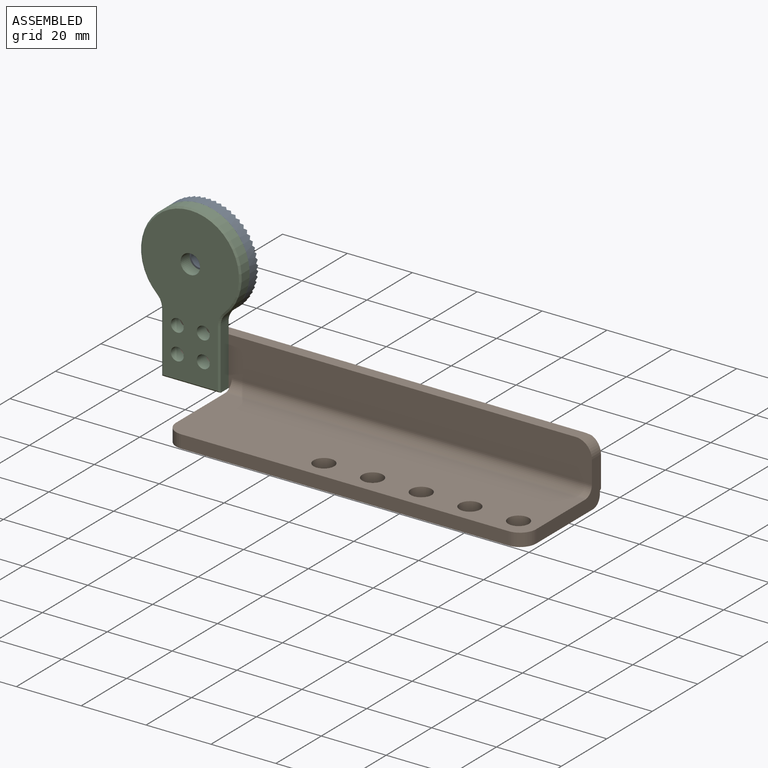
[diagram: assembled view]
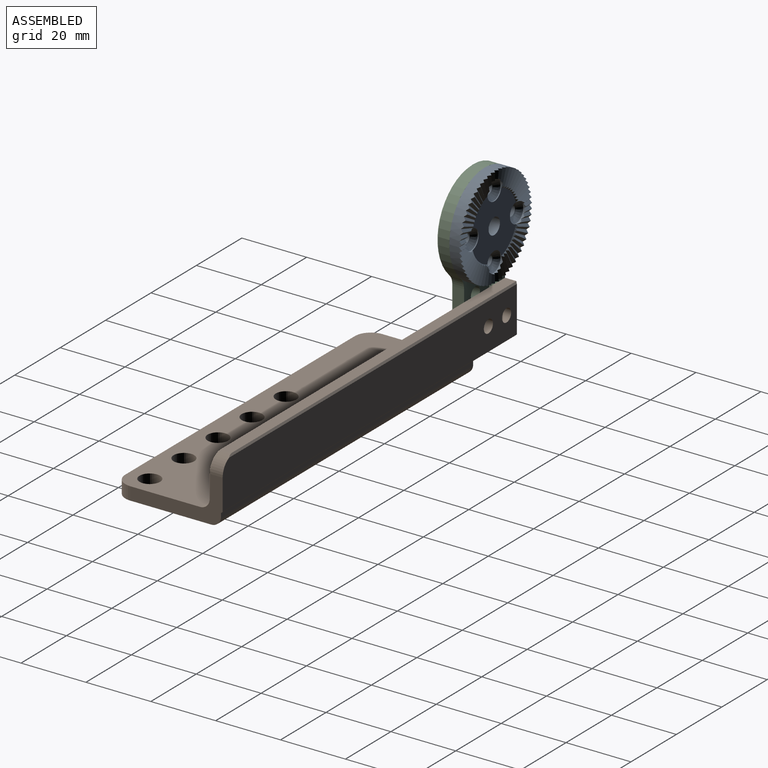
[diagram: assembled view, second angle]
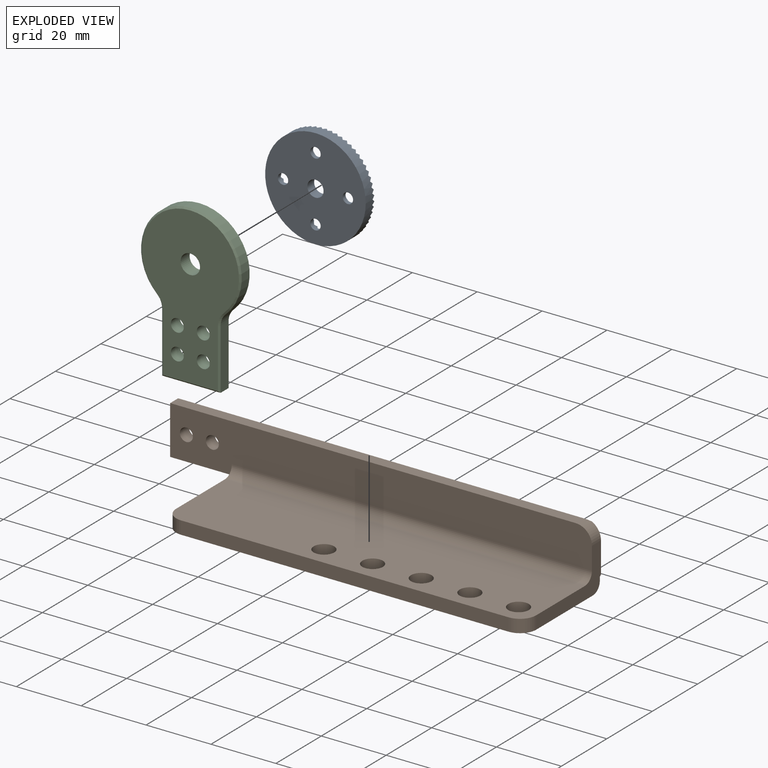
[diagram: exploded view]
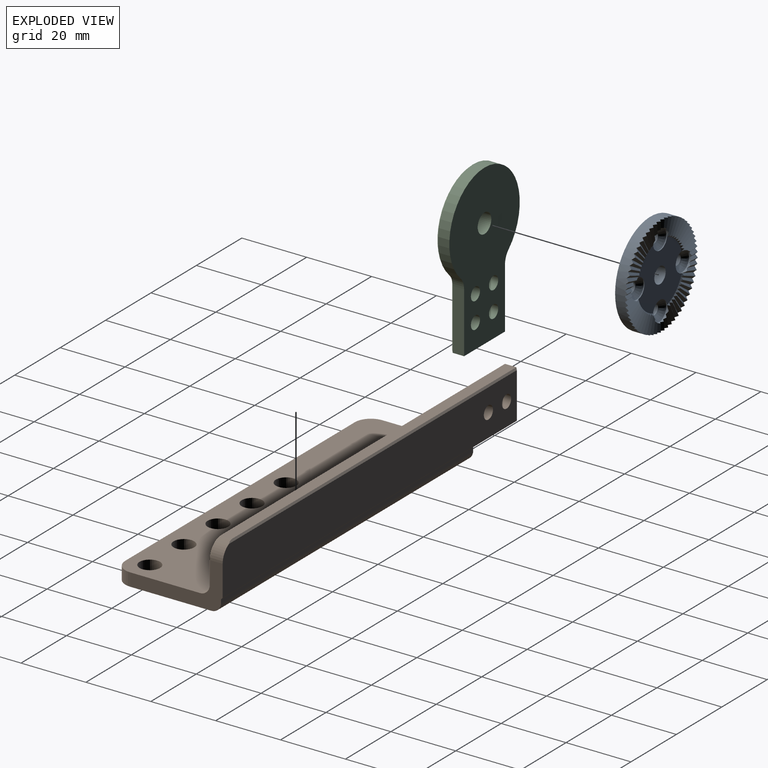
[diagram: exploded view, second angle]
ASSEMBLY  parts=3 mates=2
PART A: 180 faces, bbox 31x31x3.8 mm
  f0: cylinder r=1.6mm len=3.2mm, axis (0,0,1), area 12.6mm2, adj f109,f177
  f1: cylinder r=1.6mm len=3.2mm, axis (0,0,1), area 12.6mm2, adj f109,f179
  f2: cylinder r=1.6mm len=3.2mm, axis (0,0,1), area 12.6mm2, adj f109,f178
  f3: cylinder r=1.6mm len=3.2mm, axis (0,0,1), area 12.6mm2, adj f109,f176
  f4: cylinder r=15.5mm len=31mm, axis (0,0,-1), area 331.7mm2, adj f5,f6,f8,f10,f12,f14,f16,f18
  f5: plane 2.48x0.82mm, normal (0,0.71,0.71), area 2.6mm2, adj f4,f108,f170,f172
  f6: plane 3.49x1.26mm, normal (0.15,-0.69,0.71), area 3.3mm2, adj f4,f169,f171,f172
  f7: cone r=10mm half-angle=45deg, axis (0,0,1), area 0mm2, adj f8,f111,f172
  f8: plane 5.46x1.85mm, normal (0.22,-0.67,0.71), area 4.6mm2, adj f4,f7,f168,f169,f172
  f9: cone r=10mm half-angle=45deg, axis (0,0,1), area 0.4mm2, adj f10,f111,f168
  f10: plane 5.35x2.54mm, normal (0.29,-0.65,0.71), area 5mm2, adj f4,f9,f167,f168
  f11: cone r=10mm half-angle=45deg, axis (0,0,1), area 0.4mm2, adj f12,f111,f167
  f12: plane 5.16x2.97mm, normal (0.35,-0.61,0.71), area 5mm2, adj f4,f11,f166,f167
  f13: cone r=10mm half-angle=45deg, axis (0,0,1), area 0.4mm2, adj f14,f111,f166
  f14: plane 4.92x3.38mm, normal (0.42,-0.57,0.71), area 5mm2, adj f4,f13,f165,f166
  f15: cone r=10mm half-angle=45deg, axis (0,0,1), area 0.4mm2, adj f16,f111,f165
  f16: plane 4.63x3.74mm, normal (0.47,-0.53,0.71), area 5mm2, adj f4,f15,f164,f165
  f17: cone r=10mm half-angle=45deg, axis (0,0,1), area 0.4mm2, adj f18,f111,f164
  f18: plane 4.28x4.1mm, normal (0.53,-0.47,0.71), area 5mm2, adj f4,f17,f163,f164
  f19: cone r=10mm half-angle=45deg, axis (0,0,1), area 0.4mm2, adj f20,f111,f163
  f20: plane 4.46x3.89mm, normal (0.57,-0.42,0.71), area 5mm2, adj f4,f19,f162,f163
  f21: cone r=10mm half-angle=45deg, axis (0,0,1), area 0.4mm2, adj f22,f111,f162
  f22: plane 4.78x3.45mm, normal (0.61,-0.35,0.71), area 5mm2, adj f4,f21,f161,f162
  f23: cone r=10mm half-angle=45deg, axis (0,0,1), area 0.4mm2, adj f24,f111,f161
  f24: plane 5.04x2.98mm, normal (0.65,-0.29,0.71), area 5mm2, adj f4,f23,f160,f161
  f25: cone r=10mm half-angle=45deg, axis (0,0,1), area 0.4mm2, adj f26,f111,f160
  f26: plane 5.24x2.48mm, normal (0.67,-0.22,0.71), area 5mm2, adj f4,f25,f159,f160
  f27: cone r=10mm half-angle=45deg, axis (0,0,1), area 0mm2, adj f111,f159,f173
  f28: plane 4.18x1.5mm, normal (0.69,-0.15,0.71), area 3.8mm2, adj f4,f158,f159,f173
  f29: plane 3.04x1.1mm, normal (0.7,-0.07,0.71), area 2.9mm2, adj f4,f157,f158,f173
  f30: plane 2.48x0.82mm, normal (0.71,0,0.71), area 2.6mm2, adj f4,f156,f157,f173
  f31: plane 2.69x0.95mm, normal (0.7,0.07,0.71), area 2.7mm2, adj f4,f155,f156,f173
  f32: plane 3.49x1.26mm, normal (0.69,0.15,0.71), area 3.3mm2, adj f4,f154,f155,f173
  f33: cone r=10mm half-angle=45deg, axis (0,0,1), area 0mm2, adj f34,f111,f173
  f34: plane 5.48x1.86mm, normal (0.67,0.22,0.71), area 4.6mm2, adj f4,f33,f153,f154,f173
  f35: cone r=10mm half-angle=45deg, axis (0,0,1), area 0.4mm2, adj f36,f111,f153
  f36: plane 5.35x2.54mm, normal (0.65,0.29,0.71), area 5mm2, adj f4,f35,f152,f153
  f37: cone r=10mm half-angle=45deg, axis (0,0,1), area 0.4mm2, adj f38,f111,f152
  f38: plane 5.16x2.97mm, normal (0.61,0.35,0.71), area 5mm2, adj f4,f37,f151,f152
  f39: cone r=10mm half-angle=45deg, axis (0,0,1), area 0.4mm2, adj f40,f111,f151
  f40: plane 4.92x3.38mm, normal (0.57,0.42,0.71), area 5mm2, adj f4,f39,f150,f151
  f41: cone r=10mm half-angle=45deg, axis (0,0,1), area 0.4mm2, adj f42,f111,f150
  f42: plane 4.63x3.74mm, normal (0.53,0.47,0.71), area 5mm2, adj f4,f41,f149,f150
  f43: cone r=10mm half-angle=45deg, axis (0,0,1), area 0.4mm2, adj f44,f111,f149
  f44: plane 4.28x4.1mm, normal (0.47,0.53,0.71), area 5mm2, adj f4,f43,f148,f149
  f45: cone r=10mm half-angle=45deg, axis (0,0,1), area 0.4mm2, adj f46,f111,f148
  f46: plane 4.46x3.89mm, normal (0.42,0.57,0.71), area 5mm2, adj f4,f45,f147,f148
  f47: cone r=10mm half-angle=45deg, axis (0,0,1), area 0.4mm2, adj f48,f111,f147
  f48: plane 4.78x3.45mm, normal (0.35,0.61,0.71), area 5mm2, adj f4,f47,f146,f147
  f49: cone r=10mm half-angle=45deg, axis (0,0,1), area 0.4mm2, adj f50,f111,f146
  f50: plane 5.04x2.98mm, normal (0.29,0.65,0.71), area 5mm2, adj f4,f49,f145,f146
  f51: cone r=10mm half-angle=45deg, axis (0,0,1), area 0.4mm2, adj f52,f111,f145
  f52: plane 5.24x2.48mm, normal (0.22,0.67,0.71), area 5mm2, adj f4,f51,f144,f145
  f53: cone r=10mm half-angle=45deg, axis (0,0,1), area 0mm2, adj f111,f144,f174
  f54: plane 4.18x1.5mm, normal (0.15,0.69,0.71), area 3.8mm2, adj f4,f143,f144,f174
  f55: plane 3.04x1.1mm, normal (0.07,0.7,0.71), area 2.9mm2, adj f4,f142,f143,f174
  f56: plane 2.48x0.82mm, normal (0,0.71,0.71), area 2.6mm2, adj f4,f141,f142,f174
  f57: plane 2.69x0.95mm, normal (-0.07,0.7,0.71), area 2.7mm2, adj f4,f140,f141,f174
  f58: plane 3.49x1.26mm, normal (-0.15,0.69,0.71), area 3.3mm2, adj f4,f139,f140,f174
  f59: cone r=10mm half-angle=45deg, axis (0,0,1), area 0mm2, adj f60,f111,f174
  f60: plane 5.46x1.85mm, normal (-0.22,0.67,0.71), area 4.6mm2, adj f4,f59,f138,f139,f174
  f61: cone r=10mm half-angle=45deg, axis (0,0,1), area 0.4mm2, adj f62,f111,f138
  f62: plane 5.35x2.54mm, normal (-0.29,0.65,0.71), area 5mm2, adj f4,f61,f137,f138
  f63: cone r=10mm half-angle=45deg, axis (0,0,1), area 0.4mm2, adj f64,f111,f137
  f64: plane 5.16x2.97mm, normal (-0.35,0.61,0.71), area 5mm2, adj f4,f63,f136,f137
  f65: cone r=10mm half-angle=45deg, axis (0,0,1), area 0.4mm2, adj f66,f111,f136
  f66: plane 4.92x3.38mm, normal (-0.42,0.57,0.71), area 5mm2, adj f4,f65,f135,f136
  f67: cone r=10mm half-angle=45deg, axis (0,0,1), area 0.4mm2, adj f68,f111,f135
  f68: plane 4.63x3.74mm, normal (-0.47,0.53,0.71), area 5mm2, adj f4,f67,f134,f135
  f69: cone r=10mm half-angle=45deg, axis (0,0,1), area 0.4mm2, adj f70,f111,f134
  f70: plane 4.28x4.1mm, normal (-0.53,0.47,0.71), area 5mm2, adj f4,f69,f133,f134
  f71: cone r=10mm half-angle=45deg, axis (0,0,1), area 0.4mm2, adj f72,f111,f133
  f72: plane 4.46x3.89mm, normal (-0.57,0.42,0.71), area 5mm2, adj f4,f71,f132,f133
  f73: cone r=10mm half-angle=45deg, axis (0,0,1), area 0.4mm2, adj f74,f111,f132
  f74: plane 4.78x3.45mm, normal (-0.61,0.35,0.71), area 5mm2, adj f4,f73,f131,f132
  f75: cone r=10mm half-angle=45deg, axis (0,0,1), area 0.4mm2, adj f76,f111,f131
  f76: plane 5.04x2.98mm, normal (-0.65,0.29,0.71), area 5mm2, adj f4,f75,f130,f131
  f77: cone r=10mm half-angle=45deg, axis (0,0,1), area 0.4mm2, adj f78,f111,f130
  f78: plane 5.24x2.48mm, normal (-0.67,0.22,0.71), area 5mm2, adj f4,f77,f129,f130
  f79: cone r=10mm half-angle=45deg, axis (0,0,1), area 0mm2, adj f111,f129,f175
  f80: plane 4.18x1.5mm, normal (-0.69,0.15,0.71), area 3.8mm2, adj f4,f128,f129,f175
  f81: plane 3.04x1.1mm, normal (-0.7,0.07,0.71), area 2.9mm2, adj f4,f127,f128,f175
  f82: plane 2.48x0.82mm, normal (-0.71,0,0.71), area 2.6mm2, adj f4,f126,f127,f175
  f83: plane 2.69x0.95mm, normal (-0.7,-0.07,0.71), area 2.7mm2, adj f4,f125,f126,f175
  f84: plane 3.49x1.26mm, normal (-0.69,-0.15,0.71), area 3.3mm2, adj f4,f124,f125,f175
  f85: cone r=10mm half-angle=45deg, axis (0,0,1), area 0mm2, adj f86,f111,f175
  f86: plane 5.46x1.85mm, normal (-0.67,-0.22,0.71), area 4.6mm2, adj f4,f85,f123,f124,f175
  f87: cone r=10mm half-angle=45deg, axis (0,0,1), area 0.4mm2, adj f88,f111,f123
  f88: plane 5.35x2.54mm, normal (-0.65,-0.29,0.71), area 5mm2, adj f4,f87,f122,f123
  f89: cone r=10mm half-angle=45deg, axis (0,0,1), area 0.4mm2, adj f90,f111,f122
  f90: plane 5.16x2.97mm, normal (-0.61,-0.35,0.71), area 5mm2, adj f4,f89,f121,f122
  f91: cone r=10mm half-angle=45deg, axis (0,0,1), area 0.4mm2, adj f92,f111,f121
  f92: plane 4.92x3.38mm, normal (-0.57,-0.42,0.71), area 5mm2, adj f4,f91,f120,f121
  f93: cone r=10mm half-angle=45deg, axis (0,0,1), area 0.4mm2, adj f94,f111,f120
  f94: plane 4.63x3.74mm, normal (-0.53,-0.47,0.71), area 5mm2, adj f4,f93,f119,f120
  f95: cone r=10mm half-angle=45deg, axis (0,0,1), area 0.4mm2, adj f96,f111,f119
  f96: plane 4.28x4.1mm, normal (-0.47,-0.53,0.71), area 5mm2, adj f4,f95,f118,f119
  f97: cone r=10mm half-angle=45deg, axis (0,0,1), area 0.4mm2, adj f98,f111,f118
  f98: plane 4.46x3.89mm, normal (-0.42,-0.57,0.71), area 5mm2, adj f4,f97,f117,f118
  f99: cone r=10mm half-angle=45deg, axis (0,0,1), area 0.4mm2, adj f100,f111,f117
  f100: plane 4.78x3.45mm, normal (-0.35,-0.61,0.71), area 5mm2, adj f4,f99,f116,f117
  f101: cone r=10mm half-angle=45deg, axis (0,0,1), area 0.4mm2, adj f102,f111,f116
  f102: plane 5.04x2.98mm, normal (-0.29,-0.65,0.71), area 5mm2, adj f4,f101,f115,f116
  f103: cone r=10mm half-angle=45deg, axis (0,0,1), area 0.4mm2, adj f104,f111,f115
  f104: plane 5.24x2.48mm, normal (-0.22,-0.67,0.71), area 5mm2, adj f4,f103,f114,f115
  f105: cone r=10mm half-angle=45deg, axis (0,0,1), area 0mm2, adj f111,f114,f172
  f106: plane 4.18x1.5mm, normal (-0.15,-0.69,0.71), area 3.8mm2, adj f4,f113,f114,f172
  f107: plane 3.04x1.1mm, normal (-0.07,-0.7,0.71), area 2.9mm2, adj f4,f112,f113,f172
  f108: plane 2.48x0.82mm, normal (0,-0.71,0.71), area 2.6mm2, adj f4,f5,f112,f172
  f109: plane 31x31mm, normal (0,0,-1), area 703mm2, adj f0,f1,f2,f3,f4,f110
  f110: cylinder r=2.5mm len=5mm, axis (0,0,1), area 47.1mm2, adj f109,f111
  f111: plane 19.04x19.04mm, normal (0,0,1), area 238.1mm2, adj f7,f9,f11,f13,f15,f17,f19,f21
  f112: plane 2.69x0.95mm, normal (0.07,0.7,0.71), area 2.7mm2, adj f4,f107,f108,f172
  f113: plane 3.49x1.26mm, normal (0.15,0.69,0.71), area 3.3mm2, adj f4,f106,f107,f172
  f114: plane 5.46x1.85mm, normal (0.22,0.67,0.71), area 4.6mm2, adj f4,f104,f105,f106,f172
  f115: plane 5.35x2.54mm, normal (0.29,0.65,0.71), area 5mm2, adj f4,f102,f103,f104
  f116: plane 5.16x2.97mm, normal (0.35,0.61,0.71), area 5mm2, adj f4,f100,f101,f102
  f117: plane 4.92x3.38mm, normal (0.42,0.57,0.71), area 5mm2, adj f4,f98,f99,f100
  f118: plane 4.63x3.74mm, normal (0.47,0.53,0.71), area 5mm2, adj f4,f96,f97,f98
  f119: plane 4.28x4.1mm, normal (0.53,0.47,0.71), area 5mm2, adj f4,f94,f95,f96
  f120: plane 4.46x3.89mm, normal (0.57,0.42,0.71), area 5mm2, adj f4,f92,f93,f94
  f121: plane 4.78x3.45mm, normal (0.61,0.35,0.71), area 5mm2, adj f4,f90,f91,f92
  f122: plane 5.04x2.98mm, normal (0.65,0.29,0.71), area 5mm2, adj f4,f88,f89,f90
  f123: plane 5.24x2.48mm, normal (0.67,0.22,0.71), area 5mm2, adj f4,f86,f87,f88
  f124: plane 4.18x1.5mm, normal (0.69,0.15,0.71), area 3.8mm2, adj f4,f84,f86,f175
  f125: plane 3.04x1.1mm, normal (0.7,0.07,0.71), area 2.9mm2, adj f4,f83,f84,f175
  f126: plane 2.48x0.82mm, normal (0.71,0,0.71), area 2.6mm2, adj f4,f82,f83,f175
  f127: plane 2.69x0.95mm, normal (0.7,-0.07,0.71), area 2.7mm2, adj f4,f81,f82,f175
  f128: plane 3.49x1.26mm, normal (0.69,-0.15,0.71), area 3.3mm2, adj f4,f80,f81,f175
  f129: plane 5.48x1.86mm, normal (0.67,-0.22,0.71), area 4.6mm2, adj f4,f78,f79,f80,f175
  f130: plane 5.35x2.54mm, normal (0.65,-0.29,0.71), area 5mm2, adj f4,f76,f77,f78
  f131: plane 5.16x2.97mm, normal (0.61,-0.35,0.71), area 5mm2, adj f4,f74,f75,f76
  f132: plane 4.92x3.38mm, normal (0.57,-0.42,0.71), area 5mm2, adj f4,f72,f73,f74
  f133: plane 4.63x3.74mm, normal (0.53,-0.47,0.71), area 5mm2, adj f4,f70,f71,f72
  f134: plane 4.28x4.1mm, normal (0.47,-0.53,0.71), area 5mm2, adj f4,f68,f69,f70
  f135: plane 4.46x3.89mm, normal (0.42,-0.57,0.71), area 5mm2, adj f4,f66,f67,f68
  f136: plane 4.78x3.45mm, normal (0.35,-0.61,0.71), area 5mm2, adj f4,f64,f65,f66
  f137: plane 5.04x2.98mm, normal (0.29,-0.65,0.71), area 5mm2, adj f4,f62,f63,f64
  f138: plane 5.24x2.48mm, normal (0.22,-0.67,0.71), area 5mm2, adj f4,f60,f61,f62
  f139: plane 4.18x1.5mm, normal (0.15,-0.69,0.71), area 3.8mm2, adj f4,f58,f60,f174
  f140: plane 3.04x1.1mm, normal (0.07,-0.7,0.71), area 2.9mm2, adj f4,f57,f58,f174
  f141: plane 2.48x0.82mm, normal (0,-0.71,0.71), area 2.6mm2, adj f4,f56,f57,f174
  f142: plane 2.69x0.95mm, normal (-0.07,-0.7,0.71), area 2.7mm2, adj f4,f55,f56,f174
  f143: plane 3.49x1.26mm, normal (-0.15,-0.69,0.71), area 3.3mm2, adj f4,f54,f55,f174
  f144: plane 5.46x1.85mm, normal (-0.22,-0.67,0.71), area 4.6mm2, adj f4,f52,f53,f54,f174
  f145: plane 5.35x2.54mm, normal (-0.29,-0.65,0.71), area 5mm2, adj f4,f50,f51,f52
  f146: plane 5.16x2.97mm, normal (-0.35,-0.61,0.71), area 5mm2, adj f4,f48,f49,f50
  f147: plane 4.92x3.38mm, normal (-0.42,-0.57,0.71), area 5mm2, adj f4,f46,f47,f48
  f148: plane 4.63x3.74mm, normal (-0.47,-0.53,0.71), area 5mm2, adj f4,f44,f45,f46
  f149: plane 4.28x4.1mm, normal (-0.53,-0.47,0.71), area 5mm2, adj f4,f42,f43,f44
  f150: plane 4.46x3.89mm, normal (-0.57,-0.42,0.71), area 5mm2, adj f4,f40,f41,f42
  f151: plane 4.78x3.45mm, normal (-0.61,-0.35,0.71), area 5mm2, adj f4,f38,f39,f40
  f152: plane 5.04x2.98mm, normal (-0.65,-0.29,0.71), area 5mm2, adj f4,f36,f37,f38
  f153: plane 5.24x2.48mm, normal (-0.67,-0.22,0.71), area 5mm2, adj f4,f34,f35,f36
  f154: plane 4.18x1.5mm, normal (-0.69,-0.15,0.71), area 3.8mm2, adj f4,f32,f34,f173
  f155: plane 3.04x1.1mm, normal (-0.7,-0.07,0.71), area 2.9mm2, adj f4,f31,f32,f173
  f156: plane 2.48x0.82mm, normal (-0.71,0,0.71), area 2.6mm2, adj f4,f30,f31,f173
  f157: plane 2.69x0.95mm, normal (-0.7,0.07,0.71), area 2.7mm2, adj f4,f29,f30,f173
  f158: plane 3.49x1.26mm, normal (-0.69,0.15,0.71), area 3.3mm2, adj f4,f28,f29,f173
  f159: plane 5.46x1.85mm, normal (-0.67,0.22,0.71), area 4.6mm2, adj f4,f26,f27,f28,f173
  f160: plane 5.35x2.54mm, normal (-0.65,0.29,0.71), area 5mm2, adj f4,f24,f25,f26
  f161: plane 5.16x2.97mm, normal (-0.61,0.35,0.71), area 5mm2, adj f4,f22,f23,f24
  f162: plane 4.92x3.38mm, normal (-0.57,0.42,0.71), area 5mm2, adj f4,f20,f21,f22
  f163: plane 4.63x3.74mm, normal (-0.53,0.47,0.71), area 5mm2, adj f4,f18,f19,f20
  f164: plane 4.28x4.1mm, normal (-0.47,0.53,0.71), area 5mm2, adj f4,f16,f17,f18
  f165: plane 4.46x3.89mm, normal (-0.42,0.57,0.71), area 5mm2, adj f4,f14,f15,f16
  f166: plane 4.78x3.45mm, normal (-0.35,0.61,0.71), area 5mm2, adj f4,f12,f13,f14
  f167: plane 5.04x2.98mm, normal (-0.29,0.65,0.71), area 5mm2, adj f4,f10,f11,f12
  f168: plane 5.24x2.48mm, normal (-0.22,0.67,0.71), area 5mm2, adj f4,f8,f9,f10
  f169: plane 4.18x1.5mm, normal (-0.15,0.69,0.71), area 3.8mm2, adj f4,f6,f8,f172
  f170: plane 2.69x0.95mm, normal (0.07,-0.7,0.71), area 2.7mm2, adj f4,f5,f171,f172
  f171: plane 3.04x1.1mm, normal (-0.07,0.7,0.71), area 2.9mm2, adj f4,f6,f170,f172
  f172: cylinder r=3.1mm len=6.2mm, axis (0,0,1), area 8.2mm2, adj f5,f6,f7,f8,f105,f106,f107,f108
  f173: cylinder r=3.1mm len=6.2mm, axis (0,0,1), area 8.2mm2, adj f27,f28,f29,f30,f31,f32,f33,f34
  f174: cylinder r=3.1mm len=6.2mm, axis (0,0,1), area 8.2mm2, adj f53,f54,f55,f56,f57,f58,f59,f60
  f175: cylinder r=3.1mm len=6.2mm, axis (0,0,1), area 8.2mm2, adj f79,f80,f81,f82,f83,f84,f85,f86
  f176: cone r=3.1mm half-angle=45deg, axis (0,0,1), area 31.3mm2, adj f3,f175
  f177: cone r=3.1mm half-angle=45deg, axis (0,0,1), area 31.3mm2, adj f0,f172
  f178: cone r=3.1mm half-angle=45deg, axis (0,0,1), area 31.3mm2, adj f2,f174
  f179: cone r=3.1mm half-angle=45deg, axis (0,0,1), area 31.3mm2, adj f1,f173
PART B: 26 faces, bbox 130x33.5x19 mm
  f0: plane 19x3.5mm, normal (0,0,-1), area 66.5mm2, adj f1,f7,f9,f11
  f1: plane 15x3.5mm, normal (-1,0,0), area 52.5mm2, adj f0,f2,f7,f10
  f2: plane 125x3.5mm, normal (0,0,1), area 437.5mm2, adj f1,f7,f8,f25
  f3: cylinder r=2mm len=4mm, axis (0,-1,0), area 50.3mm2, adj f6,f7
  f4: plane 28.5x14mm, normal (1,0,0), area 151.9mm2, adj f6,f7,f9,f12,f19,f20,f21,f22
  f5: cylinder r=2mm len=4mm, axis (0,-1,0), area 50.3mm2, adj f6,f7
  f6: plane 129.5x14mm, normal (0,1,0), area 1784.3mm2, adj f3,f4,f5,f8,f9,f10,f25
  f7: plane 130x15mm, normal (0,-1,0), area 1586.5mm2, adj f0,f1,f2,f3,f4,f5,f11,f21
  f8: plane 127.18x0.5mm, normal (0,0.71,0.71), area 89.2mm2, adj f2,f6,f10,f25
  f9: plane 130x0.5mm, normal (0,0.71,-0.71), area 91.7mm2, adj f0,f4,f6,f10,f12
  f10: plane 15x0.5mm, normal (-0.71,0.71,0), area 10.3mm2, adj f1,f6,f8,f9
  f11: plane 28x7mm, normal (-1,0,0), area 112mm2, adj f0,f7,f12,f19,f20,f21,f22,f24
  f12: plane 111x1mm, normal (0,1,0), area 111mm2, adj f4,f9,f11,f22
  f13: cylinder r=3.17mm len=6.35mm, axis (0,0,1), area 79.8mm2, adj f19,f20
  f14: cylinder r=3.17mm len=6.35mm, axis (0,0,1), area 79.8mm2, adj f19,f20
  f15: cylinder r=3.17mm len=6.35mm, axis (0,0,1), area 79.8mm2, adj f19,f20
  f16: cylinder r=3.17mm len=6.35mm, axis (0,0,1), area 79.8mm2, adj f19,f20
  f17: cylinder r=3.17mm len=6.35mm, axis (0,0,1), area 79.8mm2, adj f19,f20
  f18: plane 101x4mm, normal (0,-1,0), area 404mm2, adj f19,f20,f23,f24
  f19: plane 111x30mm, normal (0,0,-1), area 3160.9mm2, adj f4,f11,f13,f14,f15,f16,f17,f18
  f20: plane 111x26.5mm, normal (0,0,1), area 2772.4mm2, adj f4,f11,f13,f14,f15,f16,f17,f18
  f21: cylinder r=3mm len=111mm, axis (-1,0,0), area 523.1mm2, adj f4,f7,f11,f20
  f22: cylinder r=3mm len=111mm, axis (-1,0,0), area 523.1mm2, adj f4,f11,f12,f19
  f23: cylinder r=5mm len=5mm, axis (0,0,-1), area 31.4mm2, adj f4,f18,f19,f20
  f24: cylinder r=5mm len=5mm, axis (0,0,-1), area 31.4mm2, adj f11,f18,f19,f20
  f25: cylinder r=5mm len=5mm, axis (0,1,0), area 30.7mm2, adj f2,f4,f6,f7,f8
PART C: 19 faces, bbox 31x4x49.1 mm
  f0: plane 18.64x3.5mm, normal (-1,0,0), area 65.3mm2, adj f1,f6,f12,f15
  f1: plane 18x3.5mm, normal (0,0,-1), area 63mm2, adj f0,f2,f12,f13
  f2: plane 18.64x3.5mm, normal (1,0,0), area 65.3mm2, adj f1,f3,f12,f14
  f3: cylinder r=5mm len=3.65mm, axis (0,1,0), area 14.3mm2, adj f2,f4,f12,f16
  f4: cylinder r=15.5mm len=31mm, axis (0,1,0), area 259.3mm2, adj f3,f6,f12,f18
  f5: cylinder r=2mm len=4mm, axis (0,1,0), area 50.3mm2, adj f11,f12
  f6: cylinder r=5mm len=3.65mm, axis (0,1,0), area 14.3mm2, adj f0,f4,f12,f17
  f7: cylinder r=2mm len=4mm, axis (0,1,0), area 50.3mm2, adj f11,f12
  f8: cylinder r=2mm len=4mm, axis (0,1,0), area 50.3mm2, adj f11,f12
  f9: cylinder r=3mm len=6mm, axis (0,1,0), area 75.4mm2, adj f11,f12
  f10: cylinder r=2mm len=4mm, axis (0,1,0), area 50.3mm2, adj f11,f12
  f11: plane 48.12x30mm, normal (0,-1,0), area 952.5mm2, adj f5,f7,f8,f9,f10,f13,f14,f15
  f12: plane 49.12x31mm, normal (0,1,0), area 1020.4mm2, adj f0,f1,f2,f3,f4,f5,f6,f7
  f13: plane 18x0.5mm, normal (0,-0.71,-0.71), area 12.4mm2, adj f1,f11,f14,f15
  f14: plane 18.64x0.5mm, normal (0.71,-0.71,0), area 13mm2, adj f2,f11,f13,f16
  f15: plane 18.64x0.5mm, normal (-0.71,-0.71,0), area 13mm2, adj f0,f11,f13,f17
  f16: cone r=5mm half-angle=45deg, axis (0,-1,0), area 3mm2, adj f3,f11,f14,f18
  f17: cone r=5mm half-angle=45deg, axis (0,-1,0), area 3mm2, adj f6,f11,f15,f18
  f18: cone r=15mm half-angle=45deg, axis (0,1,0), area 51.5mm2, adj f4,f11,f16,f17
PLACE A rot(axis=(-1,0,0),90deg) t=(29.8,3.71,28.89)mm
PLACE B t=(29.8,3.71,-4.73)mm
PLACE C t=(29.8,3.71,-4.73)mm
MATE fastened C.f7 <-> B.f5  axis (0,1,0) through (33.8,3.71,2.77)mm
MATE fastened C.f4 <-> A.f4  axis (0,1,0) through (29.8,3.71,28.89)mm
